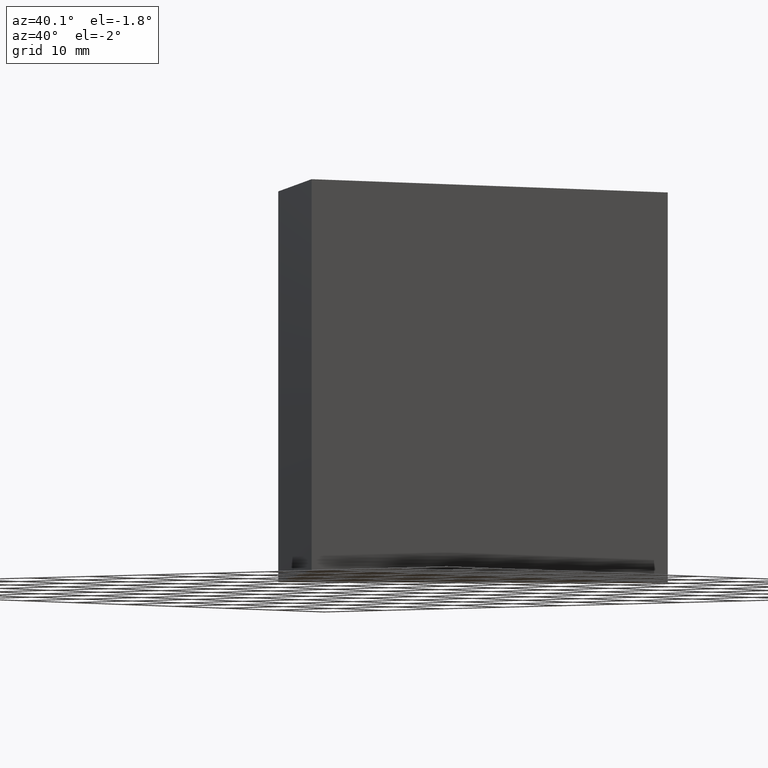
[diagram: clean part render]
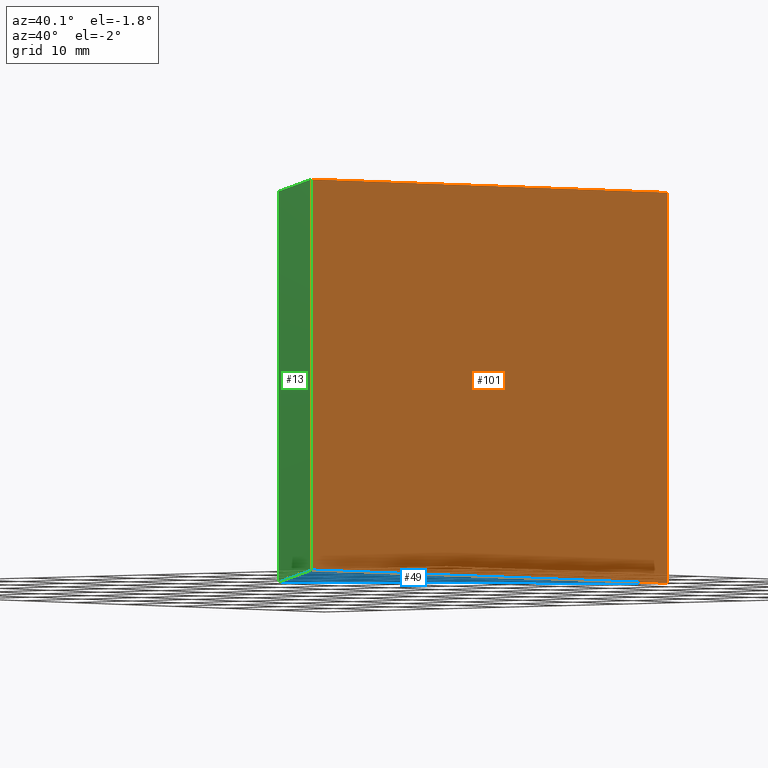
[diagram: same view with three faces highlighted in distinct colors, each labeled with its STEP entity id]
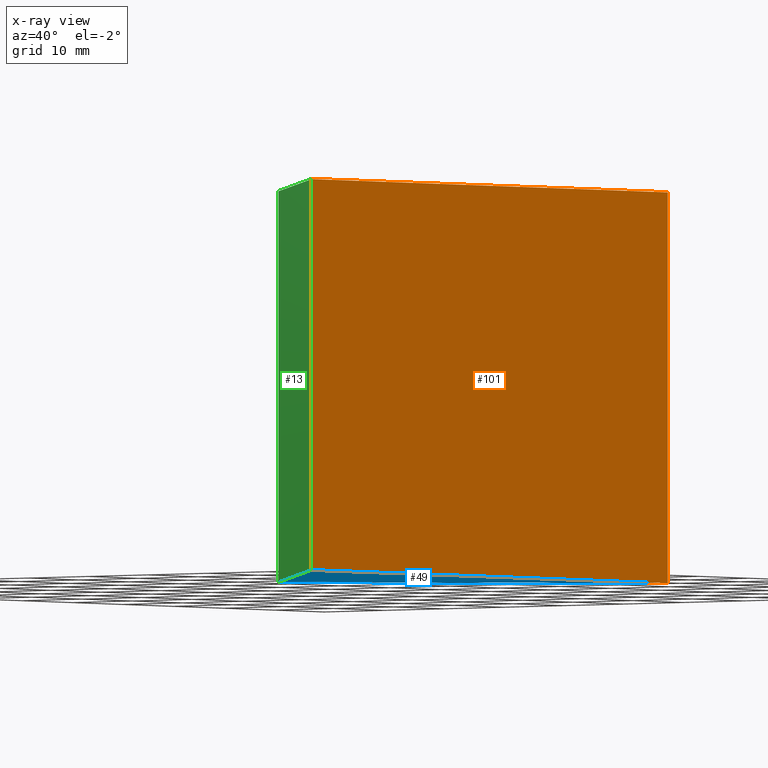
[diagram: x-ray of the same camera — body ghosted, the three highlighted faces saturated]
A machine part, auxiliary view with three faces highlighted in distinct colors.
The next image is the same camera in x-ray (body ghosted, the three faces saturated) — at least one of them is partly hidden behind the body in this view.
Their STEP definitions:

[orange] entity #101 — the highlighted planar face has unit normal (-1, 0, 0).
#1 = DIRECTION ( 'NONE',  ( -0.0000000000000000000, -0.0000000000000000000, -1.000000000000000000 ) ) ;
#6 = PLANE ( 'NONE',  #157 ) ;
#10 = CARTESIAN_POINT ( 'NONE',  ( 590.1220385852766400, 173.1122645876679900, 0.0000000000000000000 ) ) ;
#12 = VERTEX_POINT ( 'NONE', #37 ) ;
#16 = CARTESIAN_POINT ( 'NONE',  ( 590.1220385852766400, 173.1122645876679900, 50.00000000000000000 ) ) ;
#19 = CARTESIAN_POINT ( 'NONE',  ( 590.1220385852765300, 102.4015864690132200, 0.0000000000000000000 ) ) ;
#23 = FACE_OUTER_BOUND ( 'NONE', #84, .T. ) ;
#30 = CARTESIAN_POINT ( 'NONE',  ( 590.1220385852765300, 102.4015864690132200, 50.00000000000000000 ) ) ;
#36 = ORIENTED_EDGE ( 'NONE', *, *, #99, .F. ) ;
#37 = CARTESIAN_POINT ( 'NONE',  ( 590.1220385852765300, 102.4015864690132200, 0.0000000000000000000 ) ) ;
#51 = VERTEX_POINT ( 'NONE', #156 ) ;
#54 = CARTESIAN_POINT ( 'NONE',  ( 590.1220385852766400, 173.1122645876679900, 50.00000000000000000 ) ) ;
#65 = ORIENTED_EDGE ( 'NONE', *, *, #155, .T. ) ;
#66 = VECTOR ( 'NONE', #1, 1000.000000000000000 ) ;
#71 = DIRECTION ( 'NONE',  ( -0.0000000000000000000, -0.0000000000000000000, -1.000000000000000000 ) ) ;
#78 = VECTOR ( 'NONE', #71, 1000.000000000000000 ) ;
#82 = DIRECTION ( 'NONE',  ( -1.570092458683774900E-015, -1.000000000000000000, 0.0000000000000000000 ) ) ;
#84 = EDGE_LOOP ( 'NONE', ( #102, #36, #169, #65 ) ) ;
#97 = VECTOR ( 'NONE', #160, 1000.000000000000000 ) ;
#98 = VERTEX_POINT ( 'NONE', #10 ) ;
#99 = EDGE_CURVE ( 'NONE', #117, #98, #100, .T. ) ;
#100 = LINE ( 'NONE', #16, #66 ) ;
#101 = ADVANCED_FACE ( 'NONE', ( #23 ), #6, .F. ) ;
#102 = ORIENTED_EDGE ( 'NONE', *, *, #119, .T. ) ;
#109 = DIRECTION ( 'NONE',  ( 1.570092458683774700E-015, 1.000000000000000000, 0.0000000000000000000 ) ) ;
#115 = LINE ( 'NONE', #30, #78 ) ;
#117 = VERTEX_POINT ( 'NONE', #54 ) ;
#119 = EDGE_CURVE ( 'NONE', #12, #98, #133, .T. ) ;
#122 = CARTESIAN_POINT ( 'NONE',  ( 590.1220385852765300, 102.4015864690132200, 50.00000000000000000 ) ) ;
#123 = EDGE_CURVE ( 'NONE', #51, #117, #166, .T. ) ;
#133 = LINE ( 'NONE', #19, #97 ) ;
#139 = CARTESIAN_POINT ( 'NONE',  ( 590.1220385852765300, 102.4015864690132200, 50.00000000000000000 ) ) ;
#145 = VECTOR ( 'NONE', #109, 1000.000000000000000 ) ;
#148 = DIRECTION ( 'NONE',  ( -1.000000000000000000, 1.570092458683774900E-015, 0.0000000000000000000 ) ) ;
#155 = EDGE_CURVE ( 'NONE', #51, #12, #115, .T. ) ;
#156 = CARTESIAN_POINT ( 'NONE',  ( 590.1220385852765300, 102.4015864690132200, 50.00000000000000000 ) ) ;
#157 = AXIS2_PLACEMENT_3D ( 'NONE', #139, #148, #82 ) ;
#160 = DIRECTION ( 'NONE',  ( 1.570092458683774700E-015, 1.000000000000000000, 0.0000000000000000000 ) ) ;
#166 = LINE ( 'NONE', #122, #145 ) ;
#169 = ORIENTED_EDGE ( 'NONE', *, *, #123, .F. ) ;

[blue] entity #49 — the highlighted planar face has unit normal (-0, 0, 1).
#2 = EDGE_LOOP ( 'NONE', ( #130, #165, #70 ) ) ;
#10 = CARTESIAN_POINT ( 'NONE',  ( 590.1220385852766400, 173.1122645876679900, 0.0000000000000000000 ) ) ;
#12 = VERTEX_POINT ( 'NONE', #37 ) ;
#15 = VECTOR ( 'NONE', #43, 1000.000000000000000 ) ;
#17 = CARTESIAN_POINT ( 'NONE',  ( 554.7666995259492100, 137.7569255283406200, 0.0000000000000000000 ) ) ;
#19 = CARTESIAN_POINT ( 'NONE',  ( 590.1220385852765300, 102.4015864690132200, 0.0000000000000000000 ) ) ;
#25 = CARTESIAN_POINT ( 'NONE',  ( 0.0000000000000000000, 0.0000000000000000000, 0.0000000000000000000 ) ) ;
#27 = DIRECTION ( 'NONE',  ( 1.000000000000000000, 0.0000000000000000000, 0.0000000000000000000 ) ) ;
#28 = PLANE ( 'NONE',  #64 ) ;
#35 = VERTEX_POINT ( 'NONE', #131 ) ;
#37 = CARTESIAN_POINT ( 'NONE',  ( 590.1220385852765300, 102.4015864690132200, 0.0000000000000000000 ) ) ;
#43 = DIRECTION ( 'NONE',  ( -0.7071067811865481300, -0.7071067811865470200, -0.0000000000000000000 ) ) ;
#46 = DIRECTION ( 'NONE',  ( -0.0000000000000000000, 0.0000000000000000000, 1.000000000000000000 ) ) ;
#49 = ADVANCED_FACE ( 'NONE', ( #88 ), #28, .F. ) ;
#50 = DIRECTION ( 'NONE',  ( 0.7071067811865465700, -0.7071067811865484600, 0.0000000000000000000 ) ) ;
#59 = VECTOR ( 'NONE', #50, 1000.000000000000100 ) ;
#64 = AXIS2_PLACEMENT_3D ( 'NONE', #25, #46, #27 ) ;
#70 = ORIENTED_EDGE ( 'NONE', *, *, #119, .F. ) ;
#88 = FACE_OUTER_BOUND ( 'NONE', #2, .T. ) ;
#97 = VECTOR ( 'NONE', #160, 1000.000000000000000 ) ;
#98 = VERTEX_POINT ( 'NONE', #10 ) ;
#104 = LINE ( 'NONE', #164, #15 ) ;
#119 = EDGE_CURVE ( 'NONE', #12, #98, #133, .T. ) ;
#124 = LINE ( 'NONE', #17, #59 ) ;
#130 = ORIENTED_EDGE ( 'NONE', *, *, #132, .F. ) ;
#131 = CARTESIAN_POINT ( 'NONE',  ( 554.7666995259492100, 137.7569255283406200, 0.0000000000000000000 ) ) ;
#132 = EDGE_CURVE ( 'NONE', #35, #12, #124, .T. ) ;
#133 = LINE ( 'NONE', #19, #97 ) ;
#136 = EDGE_CURVE ( 'NONE', #98, #35, #104, .T. ) ;
#160 = DIRECTION ( 'NONE',  ( 1.570092458683774700E-015, 1.000000000000000000, 0.0000000000000000000 ) ) ;
#164 = CARTESIAN_POINT ( 'NONE',  ( 554.7666995259492100, 137.7569255283406200, 0.0000000000000000000 ) ) ;
#165 = ORIENTED_EDGE ( 'NONE', *, *, #136, .F. ) ;

[green] entity #13 — the highlighted planar face has unit normal (0.7071, 0.7071, -0).
#5 = ORIENTED_EDGE ( 'NONE', *, *, #132, .T. ) ;
#8 = DIRECTION ( 'NONE',  ( 0.7071067811865465700, -0.7071067811865484600, 0.0000000000000000000 ) ) ;
#12 = VERTEX_POINT ( 'NONE', #37 ) ;
#13 = ADVANCED_FACE ( 'NONE', ( #33 ), #154, .F. ) ;
#17 = CARTESIAN_POINT ( 'NONE',  ( 554.7666995259492100, 137.7569255283406200, 0.0000000000000000000 ) ) ;
#29 = ORIENTED_EDGE ( 'NONE', *, *, #155, .F. ) ;
#30 = CARTESIAN_POINT ( 'NONE',  ( 590.1220385852765300, 102.4015864690132200, 50.00000000000000000 ) ) ;
#33 = FACE_OUTER_BOUND ( 'NONE', #106, .T. ) ;
#35 = VERTEX_POINT ( 'NONE', #131 ) ;
#37 = CARTESIAN_POINT ( 'NONE',  ( 590.1220385852765300, 102.4015864690132200, 0.0000000000000000000 ) ) ;
#42 = ORIENTED_EDGE ( 'NONE', *, *, #93, .T. ) ;
#50 = DIRECTION ( 'NONE',  ( 0.7071067811865465700, -0.7071067811865484600, 0.0000000000000000000 ) ) ;
#51 = VERTEX_POINT ( 'NONE', #156 ) ;
#56 = VECTOR ( 'NONE', #8, 1000.000000000000100 ) ;
#57 = VERTEX_POINT ( 'NONE', #85 ) ;
#59 = VECTOR ( 'NONE', #50, 1000.000000000000100 ) ;
#62 = DIRECTION ( 'NONE',  ( 0.7071067811865484600, 0.7071067811865465700, -0.0000000000000000000 ) ) ;
#71 = DIRECTION ( 'NONE',  ( -0.0000000000000000000, -0.0000000000000000000, -1.000000000000000000 ) ) ;
#78 = VECTOR ( 'NONE', #71, 1000.000000000000000 ) ;
#85 = CARTESIAN_POINT ( 'NONE',  ( 554.7666995259492100, 137.7569255283406200, 50.00000000000000000 ) ) ;
#89 = LINE ( 'NONE', #91, #129 ) ;
#91 = CARTESIAN_POINT ( 'NONE',  ( 554.7666995259492100, 137.7569255283406200, 50.00000000000000000 ) ) ;
#93 = EDGE_CURVE ( 'NONE', #57, #35, #89, .T. ) ;
#103 = DIRECTION ( 'NONE',  ( -0.7071067811865465700, 0.7071067811865484600, 0.0000000000000000000 ) ) ;
#106 = EDGE_LOOP ( 'NONE', ( #5, #29, #141, #42 ) ) ;
#108 = DIRECTION ( 'NONE',  ( -0.0000000000000000000, -0.0000000000000000000, -1.000000000000000000 ) ) ;
#112 = AXIS2_PLACEMENT_3D ( 'NONE', #168, #62, #103 ) ;
#115 = LINE ( 'NONE', #30, #78 ) ;
#124 = LINE ( 'NONE', #17, #59 ) ;
#129 = VECTOR ( 'NONE', #108, 1000.000000000000000 ) ;
#131 = CARTESIAN_POINT ( 'NONE',  ( 554.7666995259492100, 137.7569255283406200, 0.0000000000000000000 ) ) ;
#132 = EDGE_CURVE ( 'NONE', #35, #12, #124, .T. ) ;
#140 = EDGE_CURVE ( 'NONE', #57, #51, #152, .T. ) ;
#141 = ORIENTED_EDGE ( 'NONE', *, *, #140, .F. ) ;
#151 = CARTESIAN_POINT ( 'NONE',  ( 554.7666995259492100, 137.7569255283406200, 50.00000000000000000 ) ) ;
#152 = LINE ( 'NONE', #151, #56 ) ;
#154 = PLANE ( 'NONE',  #112 ) ;
#155 = EDGE_CURVE ( 'NONE', #51, #12, #115, .T. ) ;
#156 = CARTESIAN_POINT ( 'NONE',  ( 590.1220385852765300, 102.4015864690132200, 50.00000000000000000 ) ) ;
#168 = CARTESIAN_POINT ( 'NONE',  ( 554.7666995259492100, 137.7569255283406200, 50.00000000000000000 ) ) ;